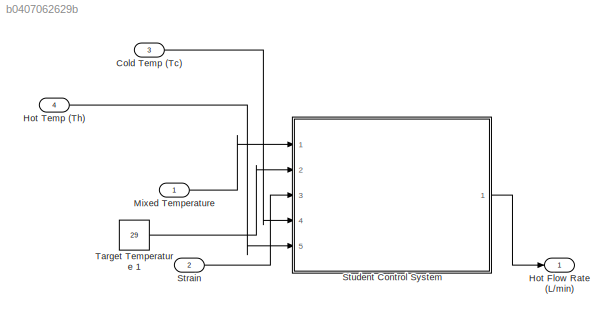
MODEL slx_b0407062629b
KIND model
CONFIG AbsTol = auto
CONFIG EnableMultiTasking = off
CONFIG FixedStep = auto
CONFIG MaxStep = auto
CONFIG MinStep = auto
CONFIG RelTol = 1e-3
CONFIG SampleTimeConstraint = Unconstrained
CONFIG Solver = VariableStepAuto
CONFIG SolverName = VariableStepAuto
CONFIG StartTime = 0.0
CONFIG StopTime = 10.0
BLOCK [Inport] Cold Temp (Tc)
  Port = 3
BLOCK [Outport] Hot Flow Rate (L//min)
BLOCK [Inport] Hot Temp (Th)
  Port = 4
BLOCK [Inport] Mixed Temperature
BLOCK [Inport] Strain
  Port = 2
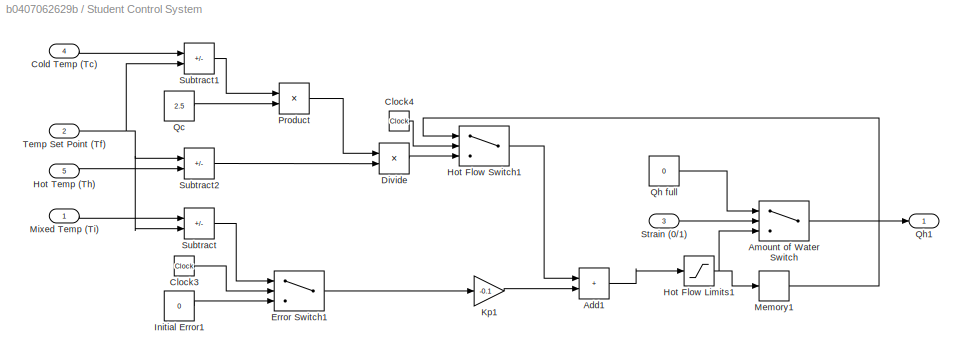
BLOCK [SubSystem] Student Control System
  Ports = [5, 1]
  RequestExecContextInheritance = off
BLOCK [Sum] Student Control System/Add1
  IconShape = rectangular
  Ports = [2, 1]
BLOCK [Switch] Student Control System/Amount of Water Switch
  Criteria = u2 > Threshold
  InputSameDT = off
  SaturateOnIntegerOverflow = off
  Threshold = 0.5
BLOCK [Clock] Student Control System/Clock3
BLOCK [Clock] Student Control System/Clock4
BLOCK [Inport] Student Control System/Cold Temp (Tc)
  Port = 4
BLOCK [Product] Student Control System/Divide
  Inputs = */
  Ports = [2, 1]
BLOCK [Switch] Student Control System/Error Switch1
  Criteria = u2 > Threshold
  InputSameDT = off
  SaturateOnIntegerOverflow = off
  Threshold = 0.15
BLOCK [Saturate] Student Control System/Hot Flow Limits1
  LowerLimit = 1.5
  UpperLimit = 3.5
BLOCK [Switch] Student Control System/Hot Flow Switch1
  Criteria = u2 > Threshold
  InputSameDT = off
  SaturateOnIntegerOverflow = off
  Threshold = 0.15
BLOCK [Inport] Student Control System/Hot Temp (Th)
  Port = 5
BLOCK [Constant] Student Control System/Initial Error1
  Value = 0
BLOCK [Gain] Student Control System/Kp1
  Gain = -0.1
BLOCK [Memory] Student Control System/Memory1
BLOCK [Inport] Student Control System/Mixed Temp (Ti)
BLOCK [Product] Student Control System/Product
  Ports = [2, 1]
BLOCK [Constant] Student Control System/Qc
  Value = 2.5
BLOCK [Constant] Student Control System/Qh full
  Value = 0
BLOCK [Outport] Student Control System/Qh1
BLOCK [Inport] Student Control System/Strain (0//1)
  Port = 3
BLOCK [Sum] Student Control System/Subtract
  IconShape = rectangular
  Inputs = +-
  Ports = [2, 1]
BLOCK [Sum] Student Control System/Subtract1
  IconShape = rectangular
  Inputs = +-
  Ports = [2, 1]
BLOCK [Sum] Student Control System/Subtract2
  IconShape = rectangular
  Inputs = +-
  Ports = [2, 1]
BLOCK [Inport] Student Control System/Temp Set Point (Tf)
  Port = 2
BLOCK [Constant] Target Temperature 1
  Value = 29
LINE Cold Temp (Tc):1 -> Student Control System:4
LINE Hot Temp (Th):1 -> Student Control System:5
LINE Mixed Temperature:1 -> Student Control System:1
LINE Strain:1 -> Student Control System:3
LINE Student Control System/Add1:1 -> Student Control System/Hot Flow Limits1:1
LINE Student Control System/Amount of Water Switch:1 -> Student Control System/Qh1:1
LINE Student Control System/Clock3:1 -> Student Control System/Error Switch1:2
LINE Student Control System/Clock4:1 -> Student Control System/Hot Flow Switch1:2
LINE Student Control System/Cold Temp (Tc):1 -> Student Control System/Subtract1:1
LINE Student Control System/Divide:1 -> Student Control System/Hot Flow Switch1:3
LINE Student Control System/Error Switch1:1 -> Student Control System/Kp1:1
NET Student Control System/Hot Flow Limits1:1 -> Student Control System/Amount of Water Switch:3, Student Control System/Memory1:1
LINE Student Control System/Hot Flow Switch1:1 -> Student Control System/Add1:1
LINE Student Control System/Hot Temp (Th):1 -> Student Control System/Subtract2:2
LINE Student Control System/Initial Error1:1 -> Student Control System/Error Switch1:3
LINE Student Control System/Kp1:1 -> Student Control System/Add1:2
LINE Student Control System/Memory1:1 -> Student Control System/Hot Flow Switch1:1
LINE Student Control System/Mixed Temp (Ti):1 -> Student Control System/Subtract:1
LINE Student Control System/Product:1 -> Student Control System/Divide:1
LINE Student Control System/Qc:1 -> Student Control System/Product:2
LINE Student Control System/Qh full:1 -> Student Control System/Amount of Water Switch:1
LINE Student Control System/Strain (0//1):1 -> Student Control System/Amount of Water Switch:2
LINE Student Control System/Subtract1:1 -> Student Control System/Product:1
LINE Student Control System/Subtract2:1 -> Student Control System/Divide:2
LINE Student Control System/Subtract:1 -> Student Control System/Error Switch1:1
NET Student Control System/Temp Set Point (Tf):1 -> Student Control System/Subtract1:2, Student Control System/Subtract2:1, Student Control System/Subtract:2
LINE Student Control System:1 -> Hot Flow Rate (L//min):1
LINE Target Temperature 1:1 -> Student Control System:2
note: NET lines group one-source signal fan-out (src -> all destinations, sorted); 1:1 wires keep LINE
